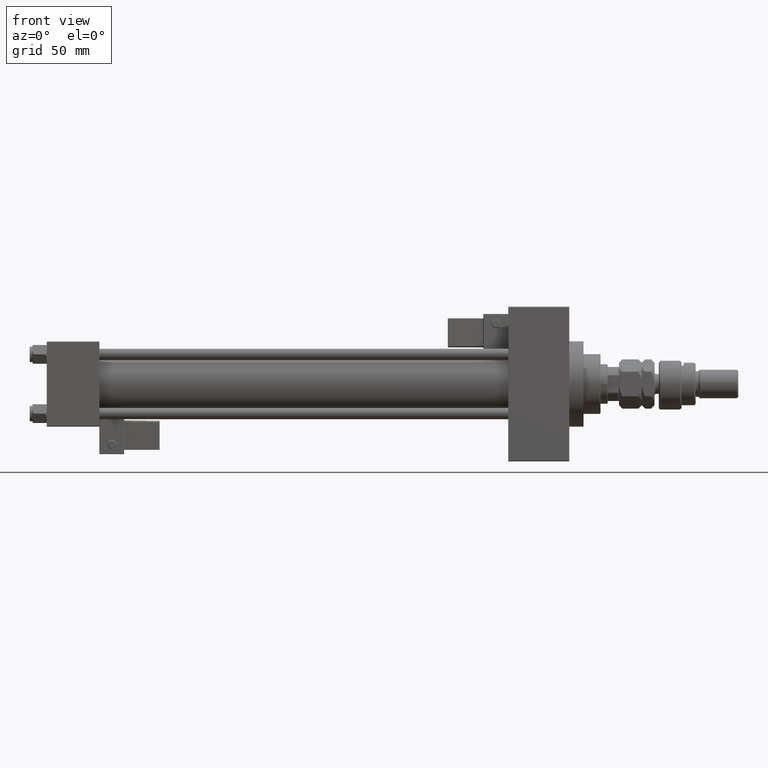
[diagram: clean part render]
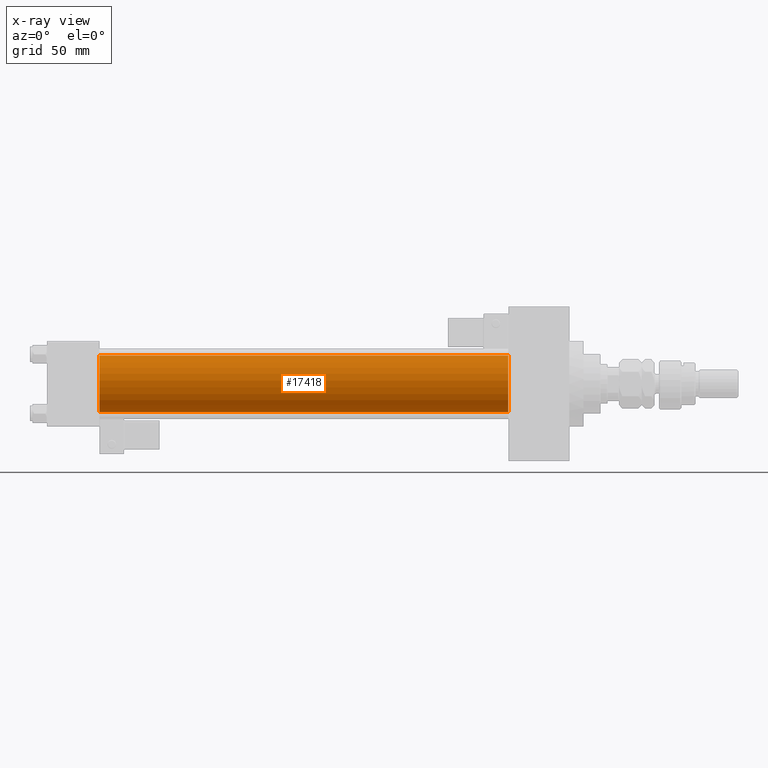
[diagram: x-ray — body ghosted, one internal face saturated and labeled with its STEP entity id]
A machine part, front view, then the same camera in x-ray: the body is ghosted and one INTERNAL B-rep face — a face not visible from any outside direction — is saturated and labeled: STEP entity #17418.
In plain terms, the highlighted cylindrical surface (edge-blend (fillet) strip) has radius 20 mm, axis along (-1, -0, -0).
Its self-contained STEP definition (entity closure, byte-faithful):
#3314 = LINE ( 'NONE', #19265, #44653 ) ;
#4042 = VERTEX_POINT ( 'NONE', #22413 ) ;
#4821 = CYLINDRICAL_SURFACE ( 'NONE', #52597, 20.00000000000000000 ) ;
#5521 = CARTESIAN_POINT ( 'NONE',  ( 324.9999999999999432, -2.602085213965210642E-15, 0.000000000000000000 ) ) ;
#5810 = CIRCLE ( 'NONE', #11118, 20.00000000000000000 ) ;
#5893 = CARTESIAN_POINT ( 'NONE',  ( 37.00000000000000000, -2.602085213965210642E-15, 0.000000000000000000 ) ) ;
#7812 = DIRECTION ( 'NONE',  ( 0.000000000000000000, 0.000000000000000000, -1.000000000000000000 ) ) ;
#8101 = DIRECTION ( 'NONE',  ( -1.000000000000000000, -0.000000000000000000, -0.000000000000000000 ) ) ;
#8377 = CARTESIAN_POINT ( 'NONE',  ( 324.9999999999999432, -2.602085213965210642E-15, 20.00000000000000000 ) ) ;
#10246 = CARTESIAN_POINT ( 'NONE',  ( 324.9999999999999432, -2.602085213965210642E-15, 0.000000000000000000 ) ) ;
#10833 = EDGE_LOOP ( 'NONE', ( #19967, #50763, #32443, #46031 ) ) ;
#11118 = AXIS2_PLACEMENT_3D ( 'NONE', #5521, #30512, #33837 ) ;
#14436 = CARTESIAN_POINT ( 'NONE',  ( 37.00000000000000000, -2.602085213965210642E-15, 20.00000000000000000 ) ) ;
#15430 = DIRECTION ( 'NONE',  ( -1.000000000000000000, -0.000000000000000000, -0.000000000000000000 ) ) ;
#16659 = DIRECTION ( 'NONE',  ( -1.000000000000000000, -0.000000000000000000, -0.000000000000000000 ) ) ;
#17418 = ADVANCED_FACE ( 'NONE', ( #46303 ), #4821, .F. ) ;
#19265 = CARTESIAN_POINT ( 'NONE',  ( 324.9999999999999432, -1.527916156705042519E-16, -20.00000000000000000 ) ) ;
#19967 = ORIENTED_EDGE ( 'NONE', *, *, #40226, .T. ) ;
#22413 = CARTESIAN_POINT ( 'NONE',  ( 37.00000000000000000, -1.527916156705042519E-16, -20.00000000000000000 ) ) ;
#22483 = VERTEX_POINT ( 'NONE', #8377 ) ;
#22636 = DIRECTION ( 'NONE',  ( 1.000000000000000000, 0.000000000000000000, 0.000000000000000000 ) ) ;
#30512 = DIRECTION ( 'NONE',  ( 1.000000000000000000, 0.000000000000000000, 0.000000000000000000 ) ) ;
#31865 = VERTEX_POINT ( 'NONE', #14436 ) ;
#32197 = VECTOR ( 'NONE', #8101, 1000.000000000000000 ) ;
#32443 = ORIENTED_EDGE ( 'NONE', *, *, #50099, .F. ) ;
#33837 = DIRECTION ( 'NONE',  ( 0.000000000000000000, 0.000000000000000000, -1.000000000000000000 ) ) ;
#35943 = CIRCLE ( 'NONE', #49094, 20.00000000000000000 ) ;
#37750 = CARTESIAN_POINT ( 'NONE',  ( 324.9999999999999432, -2.602085213965210642E-15, 20.00000000000000000 ) ) ;
#40226 = EDGE_CURVE ( 'NONE', #22483, #50407, #5810, .T. ) ;
#41358 = EDGE_CURVE ( 'NONE', #22483, #31865, #50645, .T. ) ;
#42194 = DIRECTION ( 'NONE',  ( 0.000000000000000000, 0.000000000000000000, 1.000000000000000000 ) ) ;
#44653 = VECTOR ( 'NONE', #15430, 1000.000000000000000 ) ;
#46031 = ORIENTED_EDGE ( 'NONE', *, *, #41358, .F. ) ;
#46303 = FACE_OUTER_BOUND ( 'NONE', #10833, .T. ) ;
#49094 = AXIS2_PLACEMENT_3D ( 'NONE', #5893, #22636, #7812 ) ;
#49605 = EDGE_CURVE ( 'NONE', #50407, #4042, #3314, .T. ) ;
#50099 = EDGE_CURVE ( 'NONE', #31865, #4042, #35943, .T. ) ;
#50407 = VERTEX_POINT ( 'NONE', #51972 ) ;
#50645 = LINE ( 'NONE', #37750, #32197 ) ;
#50763 = ORIENTED_EDGE ( 'NONE', *, *, #49605, .T. ) ;
#51972 = CARTESIAN_POINT ( 'NONE',  ( 324.9999999999999432, -1.527916156705042519E-16, -20.00000000000000000 ) ) ;
#52597 = AXIS2_PLACEMENT_3D ( 'NONE', #10246, #16659, #42194 ) ;